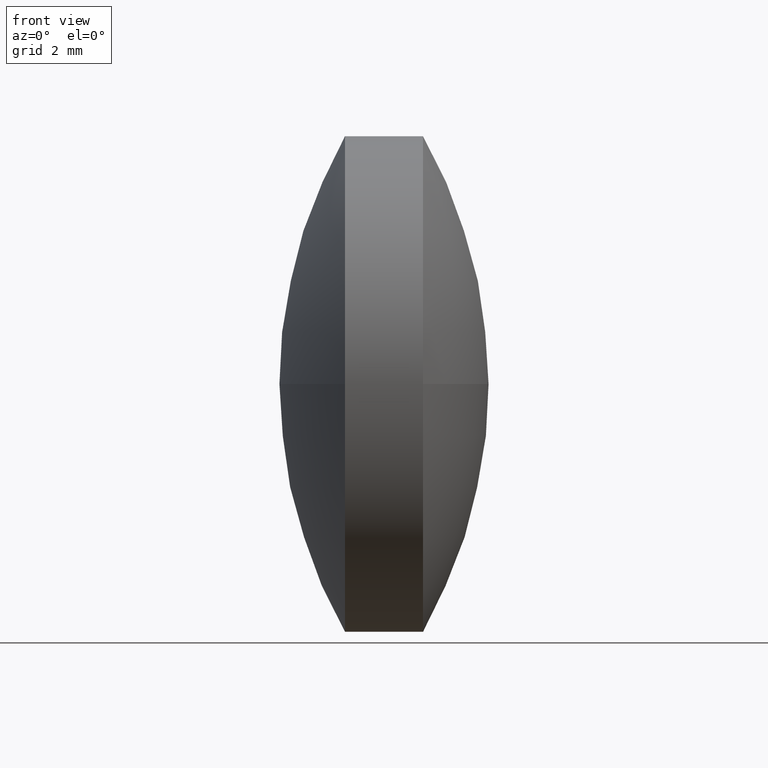
[diagram: clean part render]
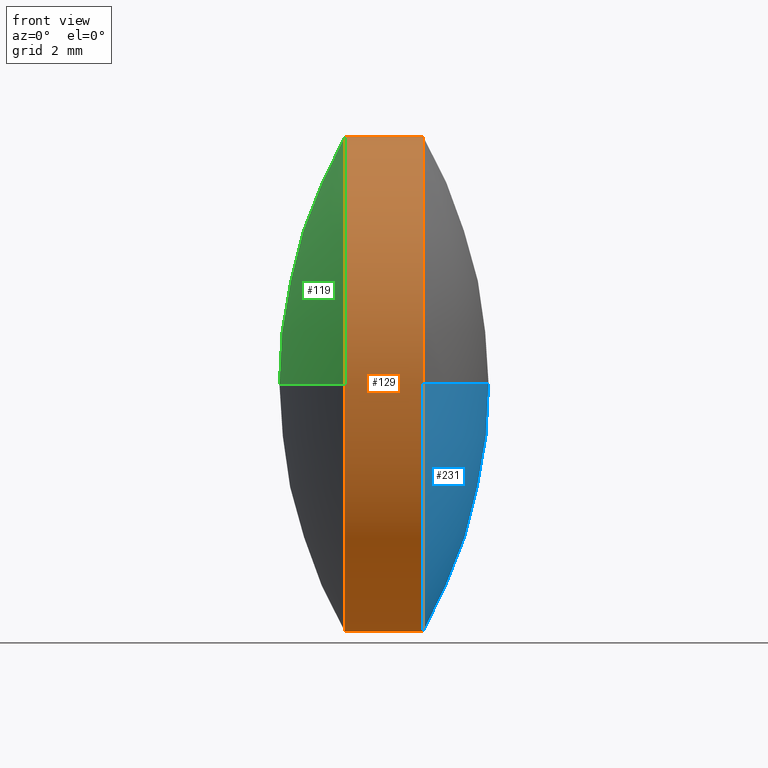
[diagram: same view with three faces highlighted in distinct colors, each labeled with its STEP entity id]
A machine part, front view with three faces highlighted in distinct colors.
Their STEP definitions:

[orange] entity #129 — the highlighted cylindrical surface (partial cylindrical patch) has radius 6.3498 mm, axis along (-1, -0, -0).
#8 = AXIS2_PLACEMENT_3D ( 'NONE', #274, #305, #254 ) ;
#15 = CARTESIAN_POINT ( 'NONE',  ( 42.22761479768103500, 17.95744082790685400, -7.776240560623605200E-016 ) ) ;
#19 = CARTESIAN_POINT ( 'NONE',  ( 44.22761479768103500, 24.30722312108537200, 0.0000000000000000000 ) ) ;
#25 = VERTEX_POINT ( 'NONE', #196 ) ;
#26 = AXIS2_PLACEMENT_3D ( 'NONE', #150, #311, #67 ) ;
#35 = ORIENTED_EDGE ( 'NONE', *, *, #69, .F. ) ;
#36 = DIRECTION ( 'NONE',  ( 0.0000000000000000000, 0.0000000000000000000, 1.000000000000000000 ) ) ;
#43 = DIRECTION ( 'NONE',  ( -1.000000000000000000, -0.0000000000000000000, -0.0000000000000000000 ) ) ;
#44 = DIRECTION ( 'NONE',  ( 0.0000000000000000000, 0.0000000000000000000, 1.000000000000000000 ) ) ;
#65 = LINE ( 'NONE', #255, #189 ) ;
#67 = DIRECTION ( 'NONE',  ( 0.0000000000000000000, 0.0000000000000000000, 1.000000000000000000 ) ) ;
#69 = EDGE_CURVE ( 'NONE', #25, #137, #105, .T. ) ;
#71 = DIRECTION ( 'NONE',  ( -1.000000000000000000, -0.0000000000000000000, -0.0000000000000000000 ) ) ;
#81 = EDGE_LOOP ( 'NONE', ( #237, #177, #275, #279, #205, #35 ) ) ;
#97 = AXIS2_PLACEMENT_3D ( 'NONE', #19, #71, #125 ) ;
#105 = CIRCLE ( 'NONE', #8, 6.349782293178511100 ) ;
#125 = DIRECTION ( 'NONE',  ( 0.0000000000000000000, 0.0000000000000000000, 1.000000000000000000 ) ) ;
#126 = CIRCLE ( 'NONE', #97, 6.349782293178511100 ) ;
#129 = ADVANCED_FACE ( 'NONE', ( #225 ), #173, .T. ) ;
#137 = VERTEX_POINT ( 'NONE', #15 ) ;
#149 = CARTESIAN_POINT ( 'NONE',  ( 44.22761479768103500, 24.30722312108537200, -6.349782293178511100 ) ) ;
#150 = CARTESIAN_POINT ( 'NONE',  ( 39.65134120086310100, 24.30722312108537200, 0.0000000000000000000 ) ) ;
#160 = VERTEX_POINT ( 'NONE', #149 ) ;
#163 = VERTEX_POINT ( 'NONE', #334 ) ;
#173 = CYLINDRICAL_SURFACE ( 'NONE', #26, 6.349782293178511100 ) ;
#175 = CARTESIAN_POINT ( 'NONE',  ( 44.22761479768103500, 17.95744082790685800, 0.0000000000000000000 ) ) ;
#177 = ORIENTED_EDGE ( 'NONE', *, *, #195, .T. ) ;
#182 = CARTESIAN_POINT ( 'NONE',  ( 39.65134120086310100, 24.30722312108537200, -6.349782293178511100 ) ) ;
#186 = LINE ( 'NONE', #182, #209 ) ;
#187 = AXIS2_PLACEMENT_3D ( 'NONE', #282, #251, #44 ) ;
#189 = VECTOR ( 'NONE', #43, 1000.000000000000000 ) ;
#195 = EDGE_CURVE ( 'NONE', #160, #318, #126, .T. ) ;
#196 = CARTESIAN_POINT ( 'NONE',  ( 42.22761479768103500, 24.30722312108537200, -6.349782293178511100 ) ) ;
#204 = DIRECTION ( 'NONE',  ( -1.000000000000000000, -0.0000000000000000000, -0.0000000000000000000 ) ) ;
#205 = ORIENTED_EDGE ( 'NONE', *, *, #281, .F. ) ;
#209 = VECTOR ( 'NONE', #319, 1000.000000000000000 ) ;
#210 = VERTEX_POINT ( 'NONE', #336 ) ;
#216 = EDGE_CURVE ( 'NONE', #318, #210, #269, .T. ) ;
#219 = AXIS2_PLACEMENT_3D ( 'NONE', #226, #204, #36 ) ;
#225 = FACE_OUTER_BOUND ( 'NONE', #81, .T. ) ;
#226 = CARTESIAN_POINT ( 'NONE',  ( 42.22761479768103500, 24.30722312108537200, 0.0000000000000000000 ) ) ;
#237 = ORIENTED_EDGE ( 'NONE', *, *, #343, .F. ) ;
#239 = CIRCLE ( 'NONE', #219, 6.349782293178511100 ) ;
#251 = DIRECTION ( 'NONE',  ( -1.000000000000000000, -0.0000000000000000000, -0.0000000000000000000 ) ) ;
#252 = EDGE_CURVE ( 'NONE', #210, #163, #65, .T. ) ;
#254 = DIRECTION ( 'NONE',  ( 0.0000000000000000000, 0.0000000000000000000, 1.000000000000000000 ) ) ;
#255 = CARTESIAN_POINT ( 'NONE',  ( 39.65134120086310100, 24.30722312108537200, 6.349782293178511100 ) ) ;
#269 = CIRCLE ( 'NONE', #187, 6.349782293178511100 ) ;
#274 = CARTESIAN_POINT ( 'NONE',  ( 42.22761479768103500, 24.30722312108537200, 0.0000000000000000000 ) ) ;
#275 = ORIENTED_EDGE ( 'NONE', *, *, #216, .T. ) ;
#279 = ORIENTED_EDGE ( 'NONE', *, *, #252, .T. ) ;
#281 = EDGE_CURVE ( 'NONE', #137, #163, #239, .T. ) ;
#282 = CARTESIAN_POINT ( 'NONE',  ( 44.22761479768103500, 24.30722312108537200, 0.0000000000000000000 ) ) ;
#305 = DIRECTION ( 'NONE',  ( -1.000000000000000000, -0.0000000000000000000, -0.0000000000000000000 ) ) ;
#311 = DIRECTION ( 'NONE',  ( -1.000000000000000000, -0.0000000000000000000, -0.0000000000000000000 ) ) ;
#318 = VERTEX_POINT ( 'NONE', #175 ) ;
#319 = DIRECTION ( 'NONE',  ( -1.000000000000000000, -0.0000000000000000000, -0.0000000000000000000 ) ) ;
#334 = CARTESIAN_POINT ( 'NONE',  ( 42.22761479768103500, 24.30722312108537200, 6.349782293178511100 ) ) ;
#336 = CARTESIAN_POINT ( 'NONE',  ( 44.22761479768103500, 24.30722312108537200, 6.349782293178511100 ) ) ;
#343 = EDGE_CURVE ( 'NONE', #160, #25, #186, .T. ) ;

[blue] entity #231 — the highlighted spherical surface has radius 12.8425 mm.
#10 = VERTEX_POINT ( 'NONE', #329 ) ;
#16 = DIRECTION ( 'NONE',  ( 0.0000000000000000000, 0.0000000000000000000, 1.000000000000000000 ) ) ;
#19 = CARTESIAN_POINT ( 'NONE',  ( 44.22761479768103500, 24.30722312108537200, 0.0000000000000000000 ) ) ;
#68 = DIRECTION ( 'NONE',  ( 0.0000000000000000000, -1.000000000000000000, -1.224646799147353200E-016 ) ) ;
#70 = ORIENTED_EDGE ( 'NONE', *, *, #230, .F. ) ;
#71 = DIRECTION ( 'NONE',  ( -1.000000000000000000, -0.0000000000000000000, -0.0000000000000000000 ) ) ;
#87 = EDGE_CURVE ( 'NONE', #10, #160, #304, .T. ) ;
#93 = CARTESIAN_POINT ( 'NONE',  ( 33.06469795739136700, 24.30722312108537900, 0.0000000000000000000 ) ) ;
#96 = CARTESIAN_POINT ( 'NONE',  ( 44.22761479768103500, 24.30722312108537200, 0.0000000000000000000 ) ) ;
#97 = AXIS2_PLACEMENT_3D ( 'NONE', #19, #71, #125 ) ;
#98 = DIRECTION ( 'NONE',  ( -1.000000000000000000, -0.0000000000000000000, -0.0000000000000000000 ) ) ;
#101 = CARTESIAN_POINT ( 'NONE',  ( 33.06469795739136700, 24.30722312108537900, 0.0000000000000000000 ) ) ;
#103 = DIRECTION ( 'NONE',  ( -1.000000000000000000, 0.0000000000000000000, 0.0000000000000000000 ) ) ;
#123 = DIRECTION ( 'NONE',  ( 0.0000000000000000000, -1.224646799147353200E-016, 1.000000000000000000 ) ) ;
#125 = DIRECTION ( 'NONE',  ( 0.0000000000000000000, 0.0000000000000000000, 1.000000000000000000 ) ) ;
#126 = CIRCLE ( 'NONE', #97, 6.349782293178511100 ) ;
#133 = FACE_OUTER_BOUND ( 'NONE', #212, .T. ) ;
#135 = AXIS2_PLACEMENT_3D ( 'NONE', #96, #98, #197 ) ;
#136 = AXIS2_PLACEMENT_3D ( 'NONE', #101, #155, #103 ) ;
#140 = CIRCLE ( 'NONE', #192, 12.84252496801100900 ) ;
#149 = CARTESIAN_POINT ( 'NONE',  ( 44.22761479768103500, 24.30722312108537200, -6.349782293178511100 ) ) ;
#155 = DIRECTION ( 'NONE',  ( 0.0000000000000000000, 0.0000000000000000000, -1.000000000000000000 ) ) ;
#160 = VERTEX_POINT ( 'NONE', #149 ) ;
#167 = VERTEX_POINT ( 'NONE', #283 ) ;
#169 = AXIS2_PLACEMENT_3D ( 'NONE', #93, #16, #313 ) ;
#175 = CARTESIAN_POINT ( 'NONE',  ( 44.22761479768103500, 17.95744082790685800, 0.0000000000000000000 ) ) ;
#192 = AXIS2_PLACEMENT_3D ( 'NONE', #224, #123, #68 ) ;
#194 = ORIENTED_EDGE ( 'NONE', *, *, #195, .F. ) ;
#195 = EDGE_CURVE ( 'NONE', #160, #318, #126, .T. ) ;
#197 = DIRECTION ( 'NONE',  ( 0.0000000000000000000, 0.0000000000000000000, 1.000000000000000000 ) ) ;
#199 = SPHERICAL_SURFACE ( 'NONE', #169, 12.84252496801100900 ) ;
#212 = EDGE_LOOP ( 'NONE', ( #70, #290, #194, #240 ) ) ;
#224 = CARTESIAN_POINT ( 'NONE',  ( 33.06469795739136700, 24.30722312108537900, 0.0000000000000000000 ) ) ;
#230 = EDGE_CURVE ( 'NONE', #167, #10, #140, .T. ) ;
#231 = ADVANCED_FACE ( 'NONE', ( #133 ), #199, .T. ) ;
#240 = ORIENTED_EDGE ( 'NONE', *, *, #87, .F. ) ;
#268 = CIRCLE ( 'NONE', #136, 12.84252496801100900 ) ;
#283 = CARTESIAN_POINT ( 'NONE',  ( 45.90722292540238000, 24.30722312108537900, 0.0000000000000000000 ) ) ;
#290 = ORIENTED_EDGE ( 'NONE', *, *, #327, .T. ) ;
#304 = CIRCLE ( 'NONE', #135, 6.349782293178511100 ) ;
#313 = DIRECTION ( 'NONE',  ( 0.0000000000000000000, -1.000000000000000000, 0.0000000000000000000 ) ) ;
#318 = VERTEX_POINT ( 'NONE', #175 ) ;
#327 = EDGE_CURVE ( 'NONE', #167, #318, #268, .T. ) ;
#329 = CARTESIAN_POINT ( 'NONE',  ( 44.22761479768103500, 30.65700541426388900, 7.776240560623603200E-016 ) ) ;

[green] entity #119 — the highlighted spherical surface has radius 12.8425 mm.
#2 = EDGE_CURVE ( 'NONE', #47, #90, #146, .T. ) ;
#3 = ORIENTED_EDGE ( 'NONE', *, *, #37, .T. ) ;
#6 = AXIS2_PLACEMENT_3D ( 'NONE', #250, #91, #310 ) ;
#15 = CARTESIAN_POINT ( 'NONE',  ( 42.22761479768103500, 17.95744082790685400, -7.776240560623605200E-016 ) ) ;
#17 = AXIS2_PLACEMENT_3D ( 'NONE', #117, #171, #33 ) ;
#30 = EDGE_LOOP ( 'NONE', ( #247, #218, #3, #120 ) ) ;
#33 = DIRECTION ( 'NONE',  ( 1.000000000000000000, 0.0000000000000000000, 0.0000000000000000000 ) ) ;
#36 = DIRECTION ( 'NONE',  ( 0.0000000000000000000, 0.0000000000000000000, 1.000000000000000000 ) ) ;
#37 = EDGE_CURVE ( 'NONE', #163, #47, #63, .T. ) ;
#47 = VERTEX_POINT ( 'NONE', #277 ) ;
#63 = CIRCLE ( 'NONE', #6, 6.349782293178511100 ) ;
#66 = DIRECTION ( 'NONE',  ( 0.0000000000000000000, 1.000000000000000000, 0.0000000000000000000 ) ) ;
#90 = VERTEX_POINT ( 'NONE', #121 ) ;
#91 = DIRECTION ( 'NONE',  ( -1.000000000000000000, -0.0000000000000000000, -0.0000000000000000000 ) ) ;
#117 = CARTESIAN_POINT ( 'NONE',  ( 53.39053163797073900, 24.30722312108536800, 0.0000000000000000000 ) ) ;
#119 = ADVANCED_FACE ( 'NONE', ( #264 ), #258, .T. ) ;
#120 = ORIENTED_EDGE ( 'NONE', *, *, #2, .T. ) ;
#121 = CARTESIAN_POINT ( 'NONE',  ( 40.54800666995970500, 24.30722312108536800, 0.0000000000000000000 ) ) ;
#128 = DIRECTION ( 'NONE',  ( 0.0000000000000000000, 1.000000000000000000, 1.224646799147353200E-016 ) ) ;
#137 = VERTEX_POINT ( 'NONE', #15 ) ;
#146 = CIRCLE ( 'NONE', #17, 12.84252496801104100 ) ;
#159 = AXIS2_PLACEMENT_3D ( 'NONE', #223, #338, #66 ) ;
#163 = VERTEX_POINT ( 'NONE', #334 ) ;
#171 = DIRECTION ( 'NONE',  ( -0.0000000000000000000, 0.0000000000000000000, 1.000000000000000000 ) ) ;
#204 = DIRECTION ( 'NONE',  ( -1.000000000000000000, -0.0000000000000000000, -0.0000000000000000000 ) ) ;
#218 = ORIENTED_EDGE ( 'NONE', *, *, #281, .T. ) ;
#219 = AXIS2_PLACEMENT_3D ( 'NONE', #226, #204, #36 ) ;
#223 = CARTESIAN_POINT ( 'NONE',  ( 53.39053163797073900, 24.30722312108536800, 0.0000000000000000000 ) ) ;
#226 = CARTESIAN_POINT ( 'NONE',  ( 42.22761479768103500, 24.30722312108537200, 0.0000000000000000000 ) ) ;
#235 = CARTESIAN_POINT ( 'NONE',  ( 53.39053163797073900, 24.30722312108536800, 0.0000000000000000000 ) ) ;
#239 = CIRCLE ( 'NONE', #219, 6.349782293178511100 ) ;
#247 = ORIENTED_EDGE ( 'NONE', *, *, #292, .F. ) ;
#250 = CARTESIAN_POINT ( 'NONE',  ( 42.22761479768103500, 24.30722312108537200, 0.0000000000000000000 ) ) ;
#258 = SPHERICAL_SURFACE ( 'NONE', #159, 12.84252496801103400 ) ;
#264 = FACE_OUTER_BOUND ( 'NONE', #30, .T. ) ;
#277 = CARTESIAN_POINT ( 'NONE',  ( 42.22761479768103500, 30.65700541426388200, 0.0000000000000000000 ) ) ;
#278 = CIRCLE ( 'NONE', #309, 12.84252496801103400 ) ;
#281 = EDGE_CURVE ( 'NONE', #137, #163, #239, .T. ) ;
#286 = DIRECTION ( 'NONE',  ( 0.0000000000000000000, 1.224646799147353200E-016, -1.000000000000000000 ) ) ;
#292 = EDGE_CURVE ( 'NONE', #137, #90, #278, .T. ) ;
#309 = AXIS2_PLACEMENT_3D ( 'NONE', #235, #286, #128 ) ;
#310 = DIRECTION ( 'NONE',  ( 0.0000000000000000000, 0.0000000000000000000, 1.000000000000000000 ) ) ;
#334 = CARTESIAN_POINT ( 'NONE',  ( 42.22761479768103500, 24.30722312108537200, 6.349782293178511100 ) ) ;
#338 = DIRECTION ( 'NONE',  ( -0.0000000000000000000, 0.0000000000000000000, -1.000000000000000000 ) ) ;